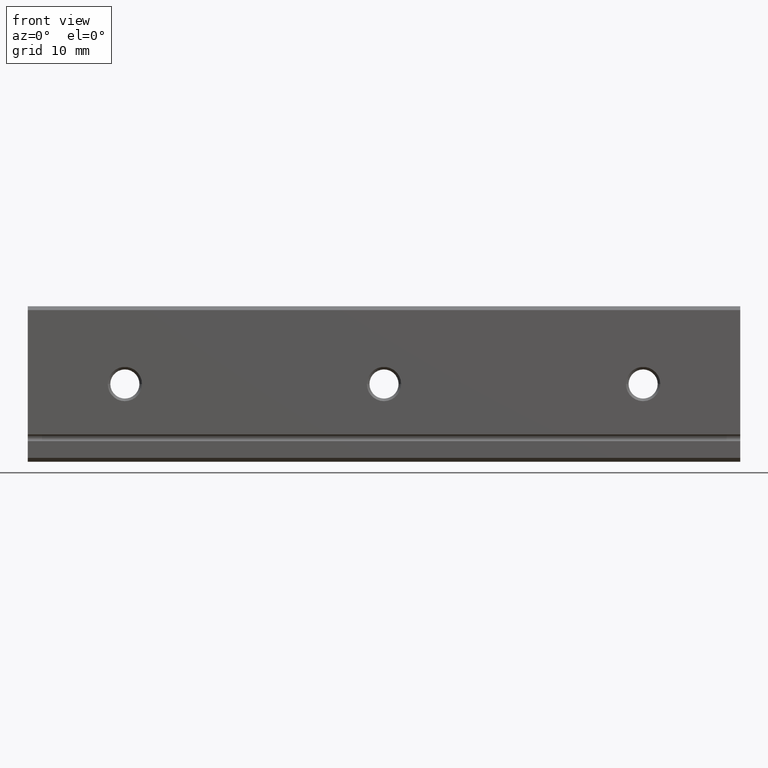
[diagram: clean part render]
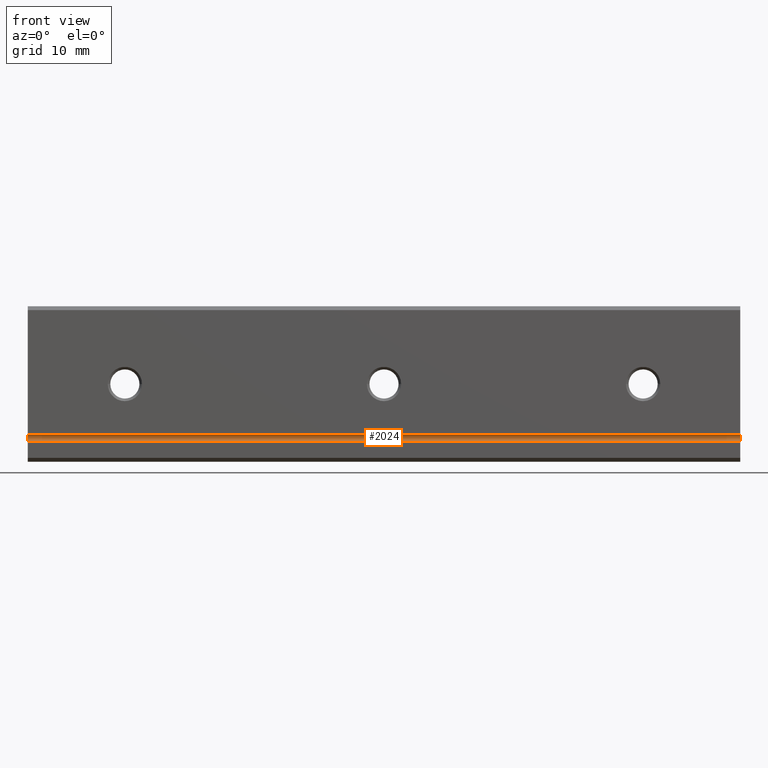
[diagram: same view with one face highlighted and labeled with its STEP entity id]
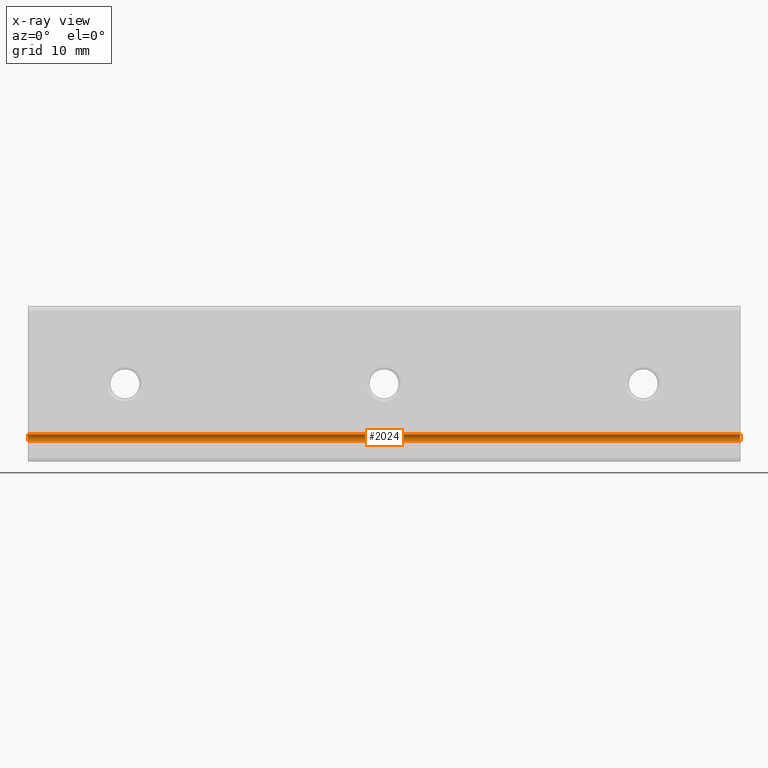
[diagram: x-ray of the same camera — body ghosted, the highlighted face saturated]
A machine part, front view. The second image highlights one B-rep face of the part: STEP entity #2024.
The next image is the same camera in x-ray: the body ghosted, the highlighted face saturated — about 0% of this face is hidden behind the body in this view.
In plain terms, the highlighted cylindrical surface (edge-blend (fillet) strip) has radius 0.6 mm, axis along (1, 0, 0).
Its self-contained STEP definition (entity closure, byte-faithful):
#210 = EDGE_CURVE ( 'NONE', #227, #229, #858, .T. ) ;
#227 = VERTEX_POINT ( 'NONE', #895 ) ;
#229 = VERTEX_POINT ( 'NONE', #894 ) ;
#288 = VERTEX_POINT ( 'NONE', #1024 ) ;
#294 = EDGE_CURVE ( 'NONE', #288, #229, #1019, .T. ) ;
#356 = VERTEX_POINT ( 'NONE', #1058 ) ;
#359 = EDGE_CURVE ( 'NONE', #356, #227, #1122, .T. ) ;
#855 = DIRECTION ( 'NONE',  ( 1.000000000000000000, 0.0000000000000000000, 0.0000000000000000000 ) ) ;
#856 = VECTOR ( 'NONE', #855, 1000.000000000000000 ) ;
#857 = CARTESIAN_POINT ( 'NONE',  ( -110.0000000000000000, -9.757819552369539900E-016, -7.780384757729334100 ) ) ;
#858 = LINE ( 'NONE', #857, #856 ) ;
#894 = CARTESIAN_POINT ( 'NONE',  ( 0.0000000000000000000, -9.757819552369539900E-016, -7.780384757729334100 ) ) ;
#895 = CARTESIAN_POINT ( 'NONE',  ( -110.0000000000000000, -9.757819552369539900E-016, -7.780384757729334100 ) ) ;
#1015 = DIRECTION ( 'NONE',  ( 0.0000000000000000000, 0.0000000000000000000, 1.000000000000000000 ) ) ;
#1016 = DIRECTION ( 'NONE',  ( 1.000000000000000000, 0.0000000000000000000, 0.0000000000000000000 ) ) ;
#1017 = CARTESIAN_POINT ( 'NONE',  ( 0.0000000000000000000, -0.3000000000000001000, -8.299999999999998900 ) ) ;
#1018 = AXIS2_PLACEMENT_3D ( 'NONE', #1017, #1016, #1015 ) ;
#1019 = CIRCLE ( 'NONE', #1018, 0.5999999999999998700 ) ;
#1024 = CARTESIAN_POINT ( 'NONE',  ( 0.0000000000000000000, -7.589415207398531000E-016, -8.819615242270661100 ) ) ;
#1058 = CARTESIAN_POINT ( 'NONE',  ( -110.0000000000000000, -7.589415207398531000E-016, -8.819615242270661100 ) ) ;
#1118 = DIRECTION ( 'NONE',  ( 0.0000000000000000000, 0.0000000000000000000, 1.000000000000000000 ) ) ;
#1119 = DIRECTION ( 'NONE',  ( 1.000000000000000000, 0.0000000000000000000, 0.0000000000000000000 ) ) ;
#1120 = CARTESIAN_POINT ( 'NONE',  ( -110.0000000000000000, -0.3000000000000001000, -8.299999999999998900 ) ) ;
#1121 = AXIS2_PLACEMENT_3D ( 'NONE', #1120, #1119, #1118 ) ;
#1122 = CIRCLE ( 'NONE', #1121, 0.5999999999999998700 ) ;
#1663 = DIRECTION ( 'NONE',  ( 1.000000000000000000, 0.0000000000000000000, 0.0000000000000000000 ) ) ;
#1664 = VECTOR ( 'NONE', #1663, 1000.000000000000000 ) ;
#1665 = CARTESIAN_POINT ( 'NONE',  ( -110.0000000000000000, -7.589415207398531000E-016, -8.819615242270661100 ) ) ;
#1666 = LINE ( 'NONE', #1665, #1664 ) ;
#1678 = DIRECTION ( 'NONE',  ( 0.0000000000000000000, 0.0000000000000000000, -1.000000000000000000 ) ) ;
#1679 = DIRECTION ( 'NONE',  ( 1.000000000000000000, 0.0000000000000000000, 0.0000000000000000000 ) ) ;
#1680 = AXIS2_PLACEMENT_3D ( 'NONE', #1689, #1679, #1678 ) ;
#1682 = CYLINDRICAL_SURFACE ( 'NONE', #1680, 0.5999999999999998700 ) ;
#1683 = FACE_OUTER_BOUND ( 'NONE', #2036, .T. ) ;
#1689 = CARTESIAN_POINT ( 'NONE',  ( -110.0000000000000000, -0.3000000000000001000, -8.299999999999998900 ) ) ;
#2024 = ADVANCED_FACE ( 'NONE', ( #1683 ), #1682, .F. ) ;
#2027 = ORIENTED_EDGE ( 'NONE', *, *, #294, .T. ) ;
#2036 = EDGE_LOOP ( 'NONE', ( #2027, #2060, #2061, #2062 ) ) ;
#2044 = EDGE_CURVE ( 'NONE', #356, #288, #1666, .T. ) ;
#2060 = ORIENTED_EDGE ( 'NONE', *, *, #210, .F. ) ;
#2061 = ORIENTED_EDGE ( 'NONE', *, *, #359, .F. ) ;
#2062 = ORIENTED_EDGE ( 'NONE', *, *, #2044, .T. ) ;